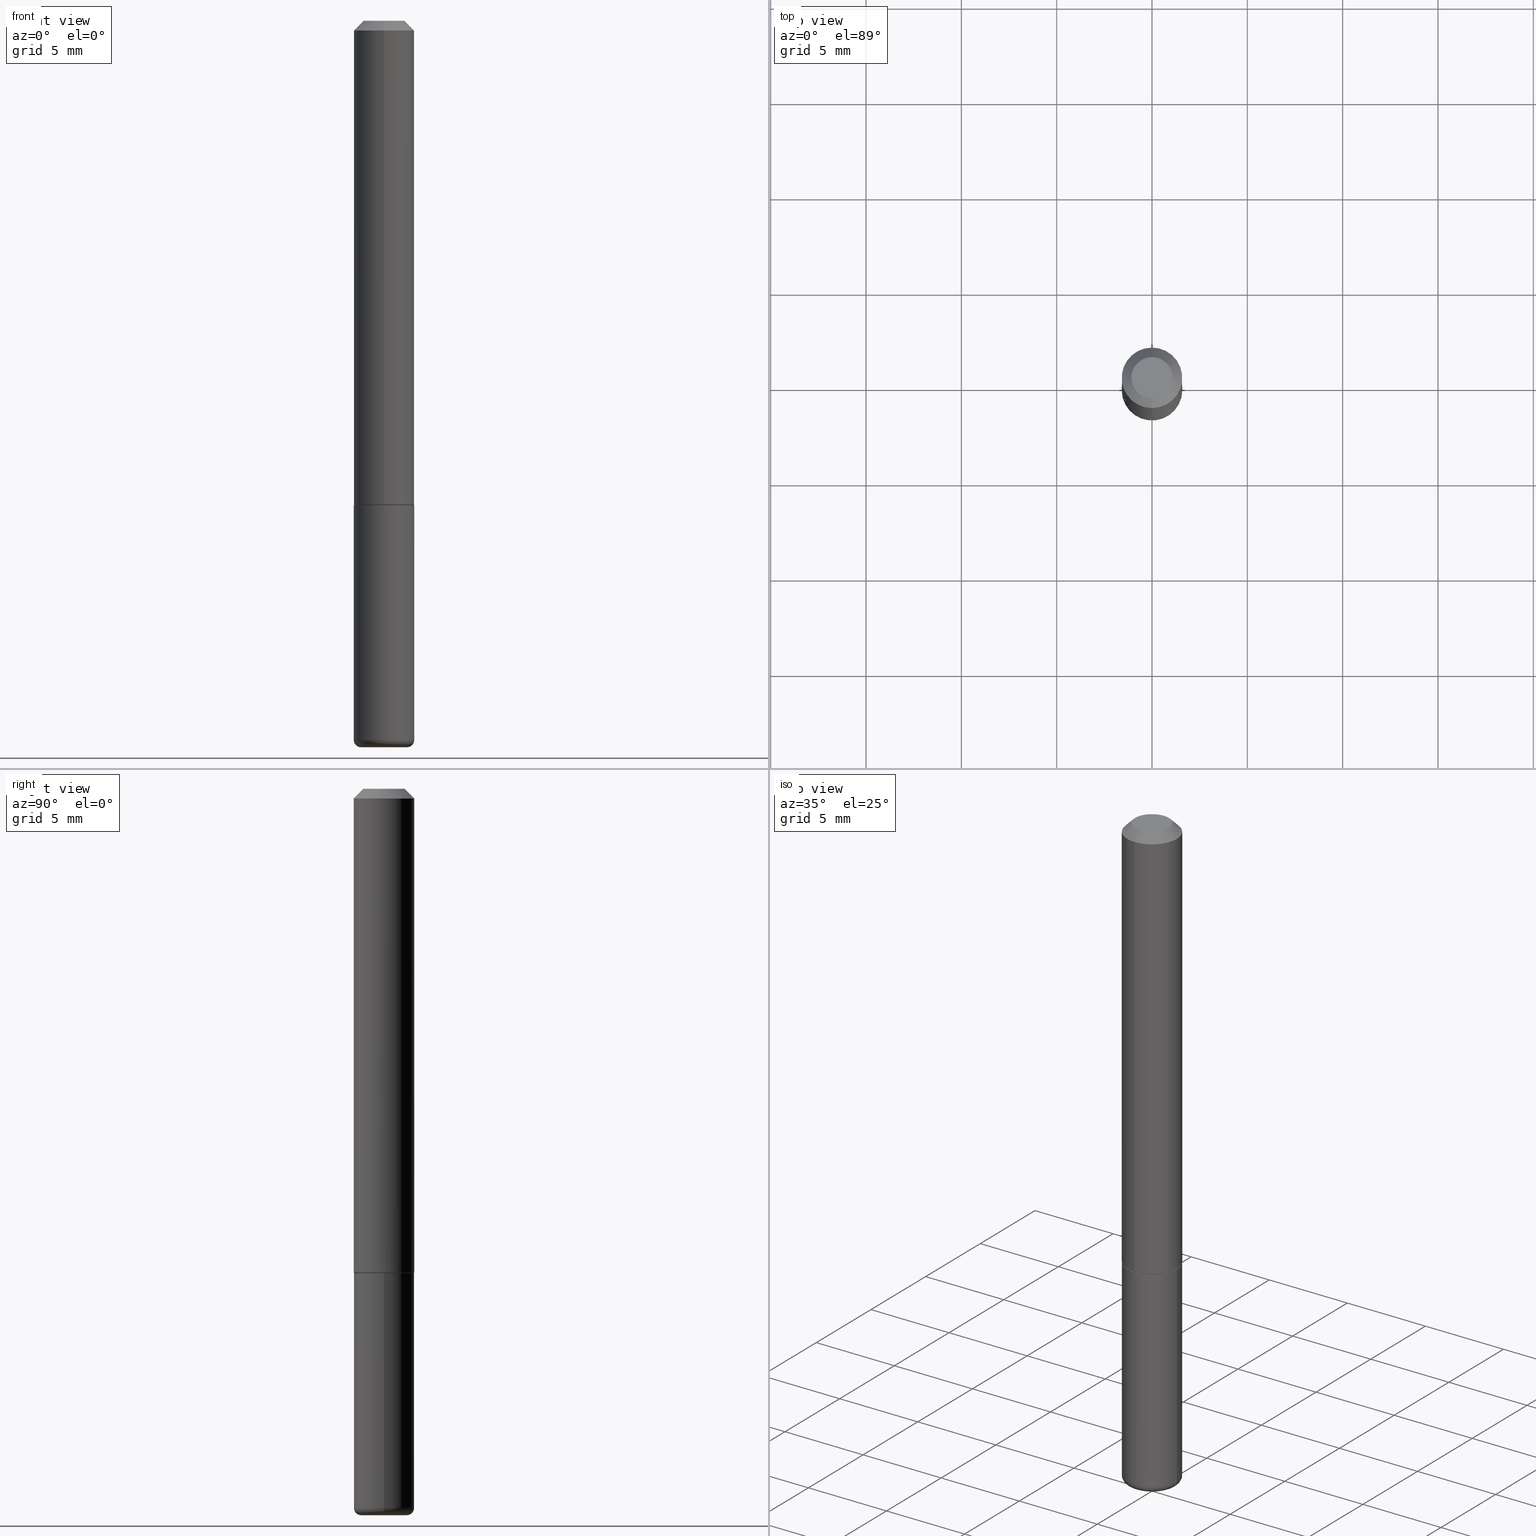
[diagram: canonical four-view strip — front | top / right | iso, engineering-drawing reading convention]
A machine part, canonical four-view strip (front | top / right | iso — engineering-drawing reading convention). The complete STEP part file that produces these views, byte-faithful:
ISO-10303-21;
HEADER;
FILE_DESCRIPTION (( 'STEP AP203' ),
    '1' );
FILE_NAME ('38315.STEP',
    '2024-03-02T22:21:19',
    ( '' ),
    ( '' ),
    'SwSTEP 2.0',
    'SolidWorks 2023',
    '' );
FILE_SCHEMA (( 'CONFIG_CONTROL_DESIGN' ));
ENDSEC;

DATA;
#1 = VERTEX_POINT ( 'NONE', #354 ) ;
#2 = ADVANCED_FACE ( 'NONE', ( #196 ), #301, .T. ) ;
#3 = VERTEX_POINT ( 'NONE', #279 ) ;
#4 = CARTESIAN_POINT ( 'NONE',  ( 2.463521279207835223E-29, -3.458635638134944801E-15, -0.9989999999999998881 ) ) ;
#5 = AXIS2_PLACEMENT_3D ( 'NONE', #219, #224, #346 ) ;
#6 = DIRECTION ( 'NONE',  ( 1.000000000000000000, -6.982962677686269077E-15, 0.000000000000000000 ) ) ;
#7 = CALENDAR_DATE ( 2024, 2, 3 ) ;
#8 = ORIENTED_EDGE ( 'NONE', *, *, #361, .T. ) ;
#9 = DIRECTION ( 'NONE',  ( -2.465987266474309438E-29, 3.462097735870816064E-15, 1.000000000000000000 ) ) ;
#10 = ORIENTED_EDGE ( 'NONE', *, *, #168, .T. ) ;
#11 = DIRECTION ( 'NONE',  ( -1.000000000000000000, 7.105427357601001859E-15, 0.000000000000000000 ) ) ;
#12 = FACE_OUTER_BOUND ( 'NONE', #329, .T. ) ;
#13 = PRODUCT_DEFINITION ( 'UNKNOWN', '', #220, #288 ) ;
#14 = LOCAL_TIME ( 17, 21, 19.00000000000000000, #123 ) ;
#15 =( CONVERSION_BASED_UNIT ( 'INCH', #130 ) LENGTH_UNIT ( ) NAMED_UNIT ( #93 ) );
#16 = CARTESIAN_POINT ( 'NONE',  ( 3.631521177184927577E-29, -5.184849788182070703E-15, -1.484999999999999876 ) ) ;
#17 = PERSON_AND_ORGANIZATION ( #131, #292 ) ;
#18 = DIRECTION ( 'NONE',  ( -2.465987266474309158E-29, 3.462097735870816064E-15, 1.000000000000000000 ) ) ;
#19 = AXIS2_PLACEMENT_3D ( 'NONE', #4, #394, #143 ) ;
#20 = AXIS2_PLACEMENT_3D ( 'NONE', #320, #258, #98 ) ;
#21 = CARTESIAN_POINT ( 'NONE',  ( -3.127033908133764755E-45, 4.390167443491932908E-31, 1.268065715766883385E-16 ) ) ;
#22 = DIRECTION ( 'NONE',  ( -2.445468806185136597E-29, 3.491481338843145583E-15, 1.000000000000000000 ) ) ;
#23 = DIRECTION ( 'NONE',  ( -2.445468806185136597E-29, 3.491481338843145583E-15, 1.000000000000000000 ) ) ;
#24 = ADVANCED_FACE ( 'NONE', ( #338 ), #117, .T. ) ;
#25 = CIRCLE ( 'NONE', #264, 0.04249999999999982264 ) ;
#26 = VERTEX_POINT ( 'NONE', #222 ) ;
#27 = AXIS2_PLACEMENT_3D ( 'NONE', #253, #23, #136 ) ;
#28 = DIRECTION ( 'NONE',  ( -1.000000000000000000, 6.982962677686265922E-15, -4.876176775795935793E-29 ) ) ;
#29 = ORIENTED_EDGE ( 'NONE', *, *, #81, .F. ) ;
#30 = DIRECTION ( 'NONE',  ( -2.465987266474309438E-29, 3.462097735870816064E-15, 1.000000000000000000 ) ) ;
#31 = ADVANCED_FACE ( 'NONE', ( #58 ), #140, .T. ) ;
#32 = AXIS2_PLACEMENT_3D ( 'NONE', #144, #330, #328 ) ;
#33 = APPROVAL_PERSON_ORGANIZATION ( #215, #411, #65 ) ;
#34 = UNCERTAINTY_MEASURE_WITH_UNIT (LENGTH_MEASURE( 1.000000000000000082E-05 ), #15, 'distance_accuracy_value', 'NONE');
#35 = EDGE_CURVE ( 'NONE', #271, #169, #171, .T. ) ;
#36 = COORDINATED_UNIVERSAL_TIME_OFFSET ( 5, 0, .BEHIND. ) ;
#37 = ORIENTED_EDGE ( 'NONE', *, *, #322, .F. ) ;
#38 = LINE ( 'NONE', #106, #127 ) ;
#39 = CIRCLE ( 'NONE', #83, 0.06249999999999995143 ) ;
#40 = EDGE_LOOP ( 'NONE', ( #387, #327 ) ) ;
#41 = DIRECTION ( 'NONE',  ( 7.105427357601001859E-15, 1.000000000000000000, -3.491481338843145583E-15 ) ) ;
#42 = CC_DESIGN_PERSON_AND_ORGANIZATION_ASSIGNMENT ( #332, #128, ( #220 ) ) ;
#43 = LINE ( 'NONE', #272, #269 ) ;
#44 = CIRCLE ( 'NONE', #311, 0.06250000000000001388 ) ;
#45 = VECTOR ( 'NONE', #30, 39.37007874015748143 ) ;
#46 = PERSON_AND_ORGANIZATION ( #131, #292 ) ;
#47 = DIRECTION ( 'NONE',  ( 2.465987266474309158E-29, -3.462097735870816064E-15, -1.000000000000000000 ) ) ;
#48 = DIRECTION ( 'NONE',  ( 2.465987266474309438E-29, -3.462097735870816064E-15, -1.000000000000000000 ) ) ;
#49 = APPROVAL_DATE_TIME ( #339, #379 ) ;
#50 = DIRECTION ( 'NONE',  ( 1.000000000000000000, -6.982962677686267499E-15, 4.876176775795935793E-29 ) ) ;
#51 = SHAPE_DEFINITION_REPRESENTATION ( #55, #176 ) ;
#52 = PLANE ( 'NONE',  #118 ) ;
#53 = AXIS2_PLACEMENT_3D ( 'NONE', #132, #225, #64 ) ;
#54 = LINE ( 'NONE', #380, #202 ) ;
#55 = PRODUCT_DEFINITION_SHAPE ( 'NONE', 'NONE',  #13 ) ;
#56 = CARTESIAN_POINT ( 'NONE',  ( 4.440892098500625669E-16, 0.06250000000000000000, -2.163811084919260040E-16 ) ) ;
#57 = COORDINATED_UNIVERSAL_TIME_OFFSET ( 5, 0, .BEHIND. ) ;
#58 = FACE_OUTER_BOUND ( 'NONE', #293, .T. ) ;
#59 = APPLICATION_PROTOCOL_DEFINITION ( 'international standard', 'config_control_design', 1994, #295 ) ;
#60 = DIRECTION ( 'NONE',  ( 1.000000000000000000, -6.982962677686276177E-15, 0.000000000000000000 ) ) ;
#61 = LINE ( 'NONE', #56, #247 ) ;
#62 = MANIFOLD_SOLID_BREP ( 'Body-Move/Copy2[2]', #260 ) ;
#63 = PERSON_AND_ORGANIZATION ( #131, #292 ) ;
#64 = DIRECTION ( 'NONE',  ( -6.982962677686265922E-15, -1.000000000000000000, 3.483106191921938315E-15 ) ) ;
#65 = APPROVAL_ROLE ( '' ) ;
#66 = ORIENTED_EDGE ( 'NONE', *, *, #134, .F. ) ;
#67 = CIRCLE ( 'NONE', #318, 0.01499999999999997689 ) ;
#68 = EDGE_CURVE ( 'NONE', #3, #395, #388, .T. ) ;
#69 = CARTESIAN_POINT ( 'NONE',  ( -4.364351673553916201E-16, -0.06250000000000000000, 2.163811084919260040E-16 ) ) ;
#70 = ORIENTED_EDGE ( 'NONE', *, *, #168, .F. ) ;
#71 = EDGE_CURVE ( 'NONE', #26, #395, #38, .T. ) ;
#72 = EDGE_LOOP ( 'NONE', ( #190, #10, #142, #240 ) ) ;
#73 = DIRECTION ( 'NONE',  ( 5.024295867788748699E-15, 0.7071067811866466046, 0.7071067811864484298 ) ) ;
#74 = VERTEX_POINT ( 'NONE', #236 ) ;
#75 = AXIS2_PLACEMENT_3D ( 'NONE', #256, #360, #174 ) ;
#76 = DIRECTION ( 'NONE',  ( -2.465987266474309438E-29, 3.462097735870816064E-15, 1.000000000000000000 ) ) ;
#77 = CARTESIAN_POINT ( 'NONE',  ( -3.601761448830043066E-16, -0.04249999999999982264, 2.739457253511973497E-16 ) ) ;
#78 = EDGE_CURVE ( 'NONE', #290, #169, #199, .T. ) ;
#79 = ORIENTED_EDGE ( 'NONE', *, *, #361, .F. ) ;
#80 = VERTEX_POINT ( 'NONE', #348 ) ;
#81 = EDGE_CURVE ( 'NONE', #169, #290, #44, .T. ) ;
#82 = AXIS2_PLACEMENT_3D ( 'NONE', #369, #48, #362 ) ;
#83 = AXIS2_PLACEMENT_3D ( 'NONE', #186, #385, #160 ) ;
#84 = DIRECTION ( 'NONE',  ( -2.465987266474309438E-29, 3.462097735870816064E-15, 1.000000000000000000 ) ) ;
#85 = DIRECTION ( 'NONE',  ( -2.445468806185136877E-29, 3.491481338843145188E-15, 1.000000000000000000 ) ) ;
#86 = DATE_TIME_ROLE ( 'creation_date' ) ;
#87 = DIRECTION ( 'NONE',  ( -6.982962677686265133E-15, -1.000000000000000000, 3.462097735870815275E-15 ) ) ;
#88 = DIRECTION ( 'NONE',  ( 1.000000000000000000, -6.982962677686279332E-15, 0.000000000000000000 ) ) ;
#89 = VECTOR ( 'NONE', #244, 39.37007874015748854 ) ;
#90 = CC_DESIGN_APPROVAL ( #379, ( #13 ) ) ;
#91 = EDGE_CURVE ( 'NONE', #1, #208, #147, .T. ) ;
#92 = DIRECTION ( 'NONE',  ( -6.982962677686265922E-15, -1.000000000000000000, 3.462097735870816064E-15 ) ) ;
#93 = DIMENSIONAL_EXPONENTS ( 1.000000000000000000, 0.000000000000000000, 0.000000000000000000, 0.000000000000000000, 0.000000000000000000, 0.000000000000000000, 0.000000000000000000 ) ;
#94 = MECHANICAL_CONTEXT ( 'NONE', #295, 'mechanical' ) ;
#95 = ORIENTED_EDGE ( 'NONE', *, *, #261, .F. ) ;
#96 = FACE_OUTER_BOUND ( 'NONE', #99, .T. ) ;
#97 = AXIS2_PLACEMENT_3D ( 'NONE', #21, #378, #87 ) ;
#98 = DIRECTION ( 'NONE',  ( -6.982962677686265922E-15, -1.000000000000000000, 4.442029257990672920E-15 ) ) ;
#99 = EDGE_LOOP ( 'NONE', ( #257, #197, #364, #304 ) ) ;
#100 = ORIENTED_EDGE ( 'NONE', *, *, #342, .F. ) ;
#101 = CONICAL_SURFACE ( 'NONE', #82, 0.06249999999999995143, 0.7853981633974466137 ) ;
#102 = LOCAL_TIME ( 17, 21, 19.00000000000000000, #57 ) ;
#103 = ORIENTED_EDGE ( 'NONE', *, *, #284, .F. ) ;
#104 = CARTESIAN_POINT ( 'NONE',  ( 3.668203209277704335E-29, -5.237222008264717388E-15, -1.499999999999999778 ) ) ;
#105 = ORIENTED_EDGE ( 'NONE', *, *, #399, .F. ) ;
#106 = CARTESIAN_POINT ( 'NONE',  ( 4.369837824924861613E-16, 0.06149999999999652273, -1.000000000000000000 ) ) ;
#107 = DIRECTION ( 'NONE',  ( -2.445468806185136597E-29, 3.491481338843145583E-15, 1.000000000000000000 ) ) ;
#108 = ORIENTED_EDGE ( 'NONE', *, *, #284, .T. ) ;
#109 = AXIS2_PLACEMENT_3D ( 'NONE', #223, #287, #28 ) ;
#110 = DIRECTION ( 'NONE',  ( -6.982962677686265133E-15, -1.000000000000000000, 3.462097735870815275E-15 ) ) ;
#111 = EDGE_LOOP ( 'NONE', ( #95, #165, #359, #79 ) ) ;
#112 = APPROVAL_DATE_TIME ( #205, #411 ) ;
#113 = CC_DESIGN_PERSON_AND_ORGANIZATION_ASSIGNMENT ( #409, #376, ( #220 ) ) ;
#114 = CARTESIAN_POINT ( 'NONE',  ( -4.287811248607198352E-16, -0.06250000000000001388, -0.01999999999999985123 ) ) ;
#115 = COORDINATED_UNIVERSAL_TIME_OFFSET ( 5, 0, .BEHIND. ) ;
#116 = CARTESIAN_POINT ( 'NONE',  ( 4.931974532948636112E-31, -6.924195471741654906E-17, -0.02000000000000006981 ) ) ;
#117 = CONICAL_SURFACE ( 'NONE', #194, 0.06149999999999998523, 0.7853981633975849475 ) ;
#118 = AXIS2_PLACEMENT_3D ( 'NONE', #308, #18, #92 ) ;
#119 = DIRECTION ( 'NONE',  ( -2.465987266474309438E-29, 3.462097735870816064E-15, 1.000000000000000000 ) ) ;
#120 = APPLICATION_PROTOCOL_DEFINITION ( 'international standard', 'config_control_design', 1994, #358 ) ;
#121 = DIRECTION ( 'NONE',  ( -6.982962677686266711E-15, -1.000000000000000000, 3.491481338843145583E-15 ) ) ;
#122 = CARTESIAN_POINT ( 'NONE',  ( 0.000000000000000000, 0.000000000000000000, 0.000000000000000000 ) ) ;
#123 = COORDINATED_UNIVERSAL_TIME_OFFSET ( 5, 0, .BEHIND. ) ;
#124 = CC_DESIGN_DATE_AND_TIME_ASSIGNMENT ( #377, #86, ( #13 ) ) ;
#125 = DIRECTION ( 'NONE',  ( 0.000000000000000000, 0.000000000000000000, 1.000000000000000000 ) ) ;
#126 = CARTESIAN_POINT ( 'NONE',  ( -0.06250000000000001388, -4.740760578332009665E-15, -1.485000000000000098 ) ) ;
#127 = VECTOR ( 'NONE', #73, 39.37007874015748143 ) ;
#128 = PERSON_AND_ORGANIZATION_ROLE ( 'creator' ) ;
#129 = AXIS2_PLACEMENT_3D ( 'NONE', #16, #150, #276 ) ;
#130 = LENGTH_MEASURE_WITH_UNIT ( LENGTH_MEASURE( 0.02539999999999999897 ), #200 );
#131 = PERSON ( 'UNSPECIFIED', 'UNSPECIFIED', 'UNSPECIFIED', ('UNSPECIFIED'), ('UNSPECIFIED'), ('UNSPECIFIED') ) ;
#132 = CARTESIAN_POINT ( 'NONE',  ( 4.931974532948636112E-31, -6.924195471741654906E-17, -0.02000000000000006981 ) ) ;
#133 = DIRECTION ( 'NONE',  ( -2.445468806185136877E-29, 3.491481338843145188E-15, 1.000000000000000000 ) ) ;
#134 = EDGE_CURVE ( 'NONE', #80, #3, #43, .T. ) ;
#135 = ORIENTED_EDGE ( 'NONE', *, *, #35, .T. ) ;
#136 = DIRECTION ( 'NONE',  ( 1.000000000000000000, -6.982962677686267499E-15, 4.876176775795935793E-29 ) ) ;
#137 = AXIS2_PLACEMENT_3D ( 'NONE', #313, #152, #60 ) ;
#138 = ORIENTED_EDGE ( 'NONE', *, *, #193, .T. ) ;
#139 = EDGE_LOOP ( 'NONE', ( #371, #382, #242, #100 ) ) ;
#140 = PLANE ( 'NONE',  #218 ) ;
#141 = AXIS2_PLACEMENT_3D ( 'NONE', #316, #410, #285 ) ;
#142 = ORIENTED_EDGE ( 'NONE', *, *, #326, .T. ) ;
#143 = DIRECTION ( 'NONE',  ( -6.982962677686266711E-15, -1.000000000000000000, 4.370956789862817205E-15 ) ) ;
#144 = CARTESIAN_POINT ( 'NONE',  ( 3.668203209277704335E-29, -5.237222008264717388E-15, -1.499999999999999778 ) ) ;
#145 = DIRECTION ( 'NONE',  ( -2.465987266474309438E-29, 3.462097735870816064E-15, 1.000000000000000000 ) ) ;
#146 = ORIENTED_EDGE ( 'NONE', *, *, #81, .T. ) ;
#147 = CIRCLE ( 'NONE', #32, 0.04750000000000004219 ) ;
#148 = PLANE ( 'NONE',  #270 ) ;
#149 = ORIENTED_EDGE ( 'NONE', *, *, #71, .T. ) ;
#150 = DIRECTION ( 'NONE',  ( -2.445468806185136597E-29, 3.491481338843145583E-15, 1.000000000000000000 ) ) ;
#151 = PERSON_AND_ORGANIZATION_ROLE ( 'creator' ) ;
#152 = DIRECTION ( 'NONE',  ( -2.445468806185136597E-29, 3.491481338843145583E-15, 1.000000000000000000 ) ) ;
#153 = VECTOR ( 'NONE', #133, 39.37007874015748143 ) ;
#154 = TOROIDAL_SURFACE ( 'NONE', #373, 0.04750000000000004219, 0.01499999999999997689 ) ;
#155 = PRODUCT ( '38315', '38315', '', ( #94 ) ) ;
#156 = EDGE_CURVE ( 'NONE', #74, #192, #25, .T. ) ;
#157 = DIRECTION ( 'NONE',  ( 1.000000000000000000, 0.000000000000000000, 0.000000000000000000 ) ) ;
#158 = CYLINDRICAL_SURFACE ( 'NONE', #363, 0.06250000000000000000 ) ;
#159 = PERSON_AND_ORGANIZATION_ROLE ( 'classification_officer' ) ;
#160 = DIRECTION ( 'NONE',  ( -6.982962677686265922E-15, -1.000000000000000000, 3.483106191921938315E-15 ) ) ;
#161 = TOROIDAL_SURFACE ( 'NONE', #129, 0.04750000000000004219, 0.01499999999999997689 ) ;
#162 = VECTOR ( 'NONE', #85, 39.37007874015748143 ) ;
#163 = DIRECTION ( 'NONE',  ( -1.000000000000000000, 6.982962677686265922E-15, -4.876176775795935793E-29 ) ) ;
#164 = CARTESIAN_POINT ( 'NONE',  ( 0.000000000000000000, 0.000000000000000000, 0.000000000000000000 ) ) ;
#165 = ORIENTED_EDGE ( 'NONE', *, *, #322, .T. ) ;
#166 = AXIS2_PLACEMENT_3D ( 'NONE', #341, #125, #157 ) ;
#167 = EDGE_LOOP ( 'NONE', ( #390, #105 ) ) ;
#168 = EDGE_CURVE ( 'NONE', #192, #349, #241, .T. ) ;
#169 = VERTEX_POINT ( 'NONE', #396 ) ;
#170 = ORIENTED_EDGE ( 'NONE', *, *, #399, .T. ) ;
#171 = LINE ( 'NONE', #298, #153 ) ;
#172 = CC_DESIGN_SECURITY_CLASSIFICATION ( #189, ( #220 ) ) ;
#173 = ORIENTED_EDGE ( 'NONE', *, *, #254, .F. ) ;
#174 = DIRECTION ( 'NONE',  ( 1.000000000000000000, -6.982962677686269077E-15, 0.000000000000000000 ) ) ;
#175 = ORIENTED_EDGE ( 'NONE', *, *, #68, .F. ) ;
#176 = ADVANCED_BREP_SHAPE_REPRESENTATION ( '38315', ( #191, #62, #166 ), #300 ) ;
#177 = DIRECTION ( 'NONE',  ( 1.000000000000000000, -6.982962677686261189E-15, 4.883557194083111219E-29 ) ) ;
#178 = ORIENTED_EDGE ( 'NONE', *, *, #71, .F. ) ;
#179 = CIRCLE ( 'NONE', #412, 0.01499999999999997689 ) ;
#180 = CARTESIAN_POINT ( 'NONE',  ( 3.631521177184928138E-29, -5.184849788182071492E-15, -1.485000000000000098 ) ) ;
#181 = CARTESIAN_POINT ( 'NONE',  ( -0.06250000000000001388, -3.894076353662544935E-15, -0.9999999999999996669 ) ) ;
#182 = PERSON_AND_ORGANIZATION ( #131, #292 ) ;
#183 = ADVANCED_FACE ( 'NONE', ( #372 ), #101, .T. ) ;
#184 = FACE_OUTER_BOUND ( 'NONE', #167, .T. ) ;
#185 = LOCAL_TIME ( 17, 21, 19.00000000000000000, #277 ) ;
#186 = CARTESIAN_POINT ( 'NONE',  ( 4.931974532948636112E-31, -6.924195471741654906E-17, -0.02000000000000006981 ) ) ;
#187 = FACE_OUTER_BOUND ( 'NONE', #209, .T. ) ;
#188 = CARTESIAN_POINT ( 'NONE',  ( 4.440892098500753366E-16, 0.06249999999999659300, -0.9990000000000002212 ) ) ;
#189 = SECURITY_CLASSIFICATION ( '', '', #370 ) ;
#190 = ORIENTED_EDGE ( 'NONE', *, *, #347, .F. ) ;
#191 = MANIFOLD_SOLID_BREP ( 'Body-Move/Copy2[1]', #299 ) ;
#192 = VERTEX_POINT ( 'NONE', #77 ) ;
#193 = EDGE_CURVE ( 'NONE', #271, #321, #231, .T. ) ;
#194 = AXIS2_PLACEMENT_3D ( 'NONE', #210, #119, #309 ) ;
#195 = APPROVAL_PERSON_ORGANIZATION ( #182, #306, #305 ) ;
#196 = FACE_OUTER_BOUND ( 'NONE', #352, .T. ) ;
#197 = ORIENTED_EDGE ( 'NONE', *, *, #254, .T. ) ;
#198 = ADVANCED_FACE ( 'NONE', ( #267 ), #161, .T. ) ;
#199 = CIRCLE ( 'NONE', #75, 0.06250000000000001388 ) ;
#200 =( LENGTH_UNIT ( ) NAMED_UNIT ( * ) SI_UNIT ( $, .METRE. ) );
#201 = CIRCLE ( 'NONE', #5, 0.06149999999999998523 ) ;
#202 = VECTOR ( 'NONE', #250, 39.37007874015748854 ) ;
#203 = ORIENTED_EDGE ( 'NONE', *, *, #393, .F. ) ;
#204 = DIRECTION ( 'NONE',  ( -2.445468806185136597E-29, 3.491481338843145583E-15, 1.000000000000000000 ) ) ;
#205 = DATE_AND_TIME ( #7, #407 ) ;
#206 = CARTESIAN_POINT ( 'NONE',  ( -0.04750000000000004219, -4.847341988696023209E-15, -1.484999999999999876 ) ) ;
#207 = CARTESIAN_POINT ( 'NONE',  ( 4.364351673553917187E-16, 0.06249999999999988204, -0.02000000000000028491 ) ) ;
#208 = VERTEX_POINT ( 'NONE', #397 ) ;
#209 = EDGE_LOOP ( 'NONE', ( #138, #108, #29, #259 ) ) ;
#210 = CARTESIAN_POINT ( 'NONE',  ( 2.465987266474308877E-29, -3.462097735870814881E-15, -0.9999999999999996669 ) ) ;
#211 =( NAMED_UNIT ( * ) SI_UNIT ( $, .STERADIAN. ) SOLID_ANGLE_UNIT ( ) );
#212 = CARTESIAN_POINT ( 'NONE',  ( 2.465987266474308877E-29, -3.462097735870814881E-15, -0.9999999999999996669 ) ) ;
#213 = FACE_OUTER_BOUND ( 'NONE', #401, .T. ) ;
#214 = EDGE_CURVE ( 'NONE', #395, #3, #237, .T. ) ;
#215 = PERSON_AND_ORGANIZATION ( #131, #292 ) ;
#216 = CYLINDRICAL_SURFACE ( 'NONE', #27, 0.06250000000000001388 ) ;
#217 = DIRECTION ( 'NONE',  ( -2.465987266474309438E-29, 3.462097735870816064E-15, 1.000000000000000000 ) ) ;
#218 = AXIS2_PLACEMENT_3D ( 'NONE', #104, #235, #163 ) ;
#219 = CARTESIAN_POINT ( 'NONE',  ( 2.465987266474308877E-29, -3.462097735870814881E-15, -0.9999999999999996669 ) ) ;
#220 = PRODUCT_DEFINITION_FORMATION_WITH_SPECIFIED_SOURCE ( 'ANY', '', #155, .NOT_KNOWN. ) ;
#221 = DATE_AND_TIME ( #251, #102 ) ;
#222 = CARTESIAN_POINT ( 'NONE',  ( 4.405364961712868626E-16, 0.06149999999999652273, -1.000000000000000000 ) ) ;
#223 = CARTESIAN_POINT ( 'NONE',  ( 2.445468806185136036E-29, -3.491481338843144399E-15, -0.9999999999999996669 ) ) ;
#224 = DIRECTION ( 'NONE',  ( -2.465987266474309438E-29, 3.462097735870816064E-15, 1.000000000000000000 ) ) ;
#225 = DIRECTION ( 'NONE',  ( -2.465987266474309438E-29, 3.462097735870816064E-15, 1.000000000000000000 ) ) ;
#226 = CIRCLE ( 'NONE', #141, 0.06250000000000001388 ) ;
#227 = LINE ( 'NONE', #69, #45 ) ;
#228 = CC_DESIGN_PERSON_AND_ORGANIZATION_ASSIGNMENT ( #17, #151, ( #13 ) ) ;
#229 = CARTESIAN_POINT ( 'NONE',  ( 3.631521177184927577E-29, -5.184849788182070703E-15, -1.484999999999999876 ) ) ;
#230 = EDGE_LOOP ( 'NONE', ( #266, #149, #175, #66 ) ) ;
#231 = CIRCLE ( 'NONE', #333, 0.06250000000000001388 ) ;
#232 = CONICAL_SURFACE ( 'NONE', #389, 0.06149999999999998523, 0.7853981633975849475 ) ;
#233 = VERTEX_POINT ( 'NONE', #207 ) ;
#234 = ADVANCED_FACE ( 'NONE', ( #12 ), #334, .T. ) ;
#235 = DIRECTION ( 'NONE',  ( 2.438088387897960049E-29, -3.491481338843145188E-15, -1.000000000000000000 ) ) ;
#236 = CARTESIAN_POINT ( 'NONE',  ( 3.666055405785283712E-16, 0.04249999999999982264, -2.033258219782074665E-17 ) ) ;
#237 = CIRCLE ( 'NONE', #392, 0.06250000000000005551 ) ;
#238 = DIRECTION ( 'NONE',  ( 1.000000000000000000, -6.982962677686261189E-15, 0.000000000000000000 ) ) ;
#239 = ADVANCED_FACE ( 'NONE', ( #213 ), #216, .T. ) ;
#240 = ORIENTED_EDGE ( 'NONE', *, *, #289, .F. ) ;
#241 = LINE ( 'NONE', #114, #89 ) ;
#242 = ORIENTED_EDGE ( 'NONE', *, *, #193, .F. ) ;
#243 = FACE_OUTER_BOUND ( 'NONE', #40, .T. ) ;
#244 = DIRECTION ( 'NONE',  ( -4.851104656540954809E-15, -0.7071067811865486830, -0.7071067811865462405 ) ) ;
#245 = CALENDAR_DATE ( 2024, 2, 3 ) ;
#246 = CARTESIAN_POINT ( 'NONE',  ( -0.06250000000000001388, 4.440892098500627148E-16, -3.074334431409317165E-30 ) ) ;
#247 = VECTOR ( 'NONE', #76, 39.37007874015748143 ) ;
#248 = DIRECTION ( 'NONE',  ( 2.465987266474309438E-29, -3.462097735870816064E-15, -1.000000000000000000 ) ) ;
#249 = EDGE_CURVE ( 'NONE', #80, #26, #201, .T. ) ;
#250 = DIRECTION ( 'NONE',  ( 4.937700262164538576E-15, 0.7071067811865437980, -0.7071067811865511255 ) ) ;
#251 = CALENDAR_DATE ( 2024, 2, 3 ) ;
#252 = CYLINDRICAL_SURFACE ( 'NONE', #286, 0.06250000000000001388 ) ;
#253 = CARTESIAN_POINT ( 'NONE',  ( 0.000000000000000000, 0.000000000000000000, 0.000000000000000000 ) ) ;
#254 = EDGE_CURVE ( 'NONE', #395, #233, #61, .T. ) ;
#255 = CARTESIAN_POINT ( 'NONE',  ( 0.06250000000000001388, -5.621284955537463950E-15, -1.485000000000000098 ) ) ;
#256 = CARTESIAN_POINT ( 'NONE',  ( 2.445468806185136036E-29, -3.491481338843144399E-15, -0.9999999999999996669 ) ) ;
#257 = ORIENTED_EDGE ( 'NONE', *, *, #68, .T. ) ;
#258 = DIRECTION ( 'NONE',  ( -2.465987266474309438E-29, 3.462097735870816064E-15, 1.000000000000000000 ) ) ;
#259 = ORIENTED_EDGE ( 'NONE', *, *, #35, .F. ) ;
#260 = CLOSED_SHELL ( 'NONE', ( #294, #355, #183, #234, #2, #24, #319, #268 ) ) ;
#261 = EDGE_CURVE ( 'NONE', #208, #321, #179, .T. ) ;
#262 = CIRCLE ( 'NONE', #97, 0.04249999999999982264 ) ;
#263 = CC_DESIGN_DATE_AND_TIME_ASSIGNMENT ( #221, #314, ( #189 ) ) ;
#264 = AXIS2_PLACEMENT_3D ( 'NONE', #337, #145, #110 ) ;
#265 = LOCAL_TIME ( 17, 21, 19.00000000000000000, #115 ) ;
#266 = ORIENTED_EDGE ( 'NONE', *, *, #249, .T. ) ;
#267 = FACE_OUTER_BOUND ( 'NONE', #111, .T. ) ;
#268 = ADVANCED_FACE ( 'NONE', ( #243 ), #148, .F. ) ;
#269 = VECTOR ( 'NONE', #402, 39.37007874015748143 ) ;
#270 = AXIS2_PLACEMENT_3D ( 'NONE', #336, #47, #384 ) ;
#271 = VERTEX_POINT ( 'NONE', #255 ) ;
#272 = CARTESIAN_POINT ( 'NONE',  ( -4.294522046776806088E-16, -0.06150000000000345468, -0.9999999999999994449 ) ) ;
#273 = CALENDAR_DATE ( 2024, 2, 3 ) ;
#274 = APPROVAL_STATUS ( 'not_yet_approved' ) ;
#275 = ADVANCED_FACE ( 'NONE', ( #374 ), #340, .F. ) ;
#276 = DIRECTION ( 'NONE',  ( 1.000000000000000000, -6.982962677686261189E-15, 4.883557194083111219E-29 ) ) ;
#277 = COORDINATED_UNIVERSAL_TIME_OFFSET ( 5, 0, .BEHIND. ) ;
#278 = CARTESIAN_POINT ( 'NONE',  ( 0.04750000000000004219, -5.516540515372169003E-15, -1.484999999999999876 ) ) ;
#279 = CARTESIAN_POINT ( 'NONE',  ( -4.364351673553674119E-16, -0.06250000000000351108, -0.9989999999999996660 ) ) ;
#280 = CARTESIAN_POINT ( 'NONE',  ( -4.287811248607198352E-16, -0.06250000000000001388, -0.01999999999999985123 ) ) ;
#281 = APPROVAL_STATUS ( 'not_yet_approved' ) ;
#282 = DIRECTION ( 'NONE',  ( -6.982962677686265922E-15, -1.000000000000000000, 3.462097735870816064E-15 ) ) ;
#283 = DATE_AND_TIME ( #273, #14 ) ;
#284 = EDGE_CURVE ( 'NONE', #321, #290, #345, .T. ) ;
#285 = DIRECTION ( 'NONE',  ( 1.000000000000000000, -6.982962677686261189E-15, 0.000000000000000000 ) ) ;
#286 = AXIS2_PLACEMENT_3D ( 'NONE', #164, #22, #50 ) ;
#287 = DIRECTION ( 'NONE',  ( 2.438088387897960049E-29, -3.491481338843145188E-15, -1.000000000000000000 ) ) ;
#288 = DESIGN_CONTEXT ( 'detailed design', #358, 'design' ) ;
#289 = EDGE_CURVE ( 'NONE', #74, #233, #54, .T. ) ;
#290 = VERTEX_POINT ( 'NONE', #181 ) ;
#291 = FACE_OUTER_BOUND ( 'NONE', #139, .T. ) ;
#292 = ORGANIZATION ( 'UNSPECIFIED', 'UNSPECIFIED', '' ) ;
#293 = EDGE_LOOP ( 'NONE', ( #391, #37 ) ) ;
#294 = ADVANCED_FACE ( 'NONE', ( #414 ), #232, .T. ) ;
#295 = APPLICATION_CONTEXT ( 'configuration controlled 3d designs of mechanical parts and assemblies' ) ;
#296 = ORIENTED_EDGE ( 'NONE', *, *, #134, .T. ) ;
#297 = ORIENTED_EDGE ( 'NONE', *, *, #156, .F. ) ;
#298 = CARTESIAN_POINT ( 'NONE',  ( 0.06250000000000001388, -4.364351673553918173E-16, 3.047610484872460571E-30 ) ) ;
#299 = CLOSED_SHELL ( 'NONE', ( #302, #417, #275, #239, #198, #31 ) ) ;
#300 =( GEOMETRIC_REPRESENTATION_CONTEXT ( 3 ) GLOBAL_UNCERTAINTY_ASSIGNED_CONTEXT ( ( #34 ) ) GLOBAL_UNIT_ASSIGNED_CONTEXT ( ( #15, #343, #211 ) ) REPRESENTATION_CONTEXT ( 'NONE', 'WORKASPACE' ) );
#301 = CYLINDRICAL_SURFACE ( 'NONE', #357, 0.06250000000000000000 ) ;
#302 = ADVANCED_FACE ( 'NONE', ( #187 ), #252, .T. ) ;
#303 = EDGE_LOOP ( 'NONE', ( #178, #170, #296, #415 ) ) ;
#304 = ORIENTED_EDGE ( 'NONE', *, *, #408, .F. ) ;
#305 = APPROVAL_ROLE ( '' ) ;
#306 = APPROVAL ( #281, 'UNSPECIFIED' ) ;
#307 = CARTESIAN_POINT ( 'NONE',  ( 2.463521279207835223E-29, -3.458635638134944801E-15, -0.9989999999999998881 ) ) ;
#308 = CARTESIAN_POINT ( 'NONE',  ( 2.465987266474308877E-29, -3.462097735870814881E-15, -0.9999999999999996669 ) ) ;
#309 = DIRECTION ( 'NONE',  ( -6.982962677686265922E-15, -1.000000000000000000, 4.442029257990672920E-15 ) ) ;
#310 = APPROVAL_STATUS ( 'not_yet_approved' ) ;
#311 = AXIS2_PLACEMENT_3D ( 'NONE', #365, #107, #6 ) ;
#312 = CIRCLE ( 'NONE', #20, 0.06149999999999998523 ) ;
#313 = CARTESIAN_POINT ( 'NONE',  ( 3.668203209277704335E-29, -5.237222008264717388E-15, -1.499999999999999778 ) ) ;
#314 = DATE_TIME_ROLE ( 'classification_date' ) ;
#315 = PERSON_AND_ORGANIZATION_ROLE ( 'design_owner' ) ;
#316 = CARTESIAN_POINT ( 'NONE',  ( 3.631521177184928138E-29, -5.184849788182071492E-15, -1.485000000000000098 ) ) ;
#317 = DIRECTION ( 'NONE',  ( -6.982962677686265922E-15, -1.000000000000000000, 4.442029257990672920E-15 ) ) ;
#318 = AXIS2_PLACEMENT_3D ( 'NONE', #278, #121, #88 ) ;
#319 = ADVANCED_FACE ( 'NONE', ( #184 ), #52, .F. ) ;
#320 = CARTESIAN_POINT ( 'NONE',  ( 2.465987266474308877E-29, -3.462097735870814881E-15, -0.9999999999999996669 ) ) ;
#321 = VERTEX_POINT ( 'NONE', #126 ) ;
#322 = EDGE_CURVE ( 'NONE', #208, #1, #383, .T. ) ;
#323 = CC_DESIGN_APPROVAL ( #411, ( #220 ) ) ;
#324 = PRODUCT_RELATED_PRODUCT_CATEGORY ( 'detail', '', ( #155 ) ) ;
#325 = CIRCLE ( 'NONE', #53, 0.06249999999999995143 ) ;
#326 = EDGE_CURVE ( 'NONE', #349, #233, #39, .T. ) ;
#327 = ORIENTED_EDGE ( 'NONE', *, *, #347, .T. ) ;
#328 = DIRECTION ( 'NONE',  ( 1.000000000000000000, -6.982962677686276177E-15, 0.000000000000000000 ) ) ;
#329 = EDGE_LOOP ( 'NONE', ( #70, #297, #335, #351 ) ) ;
#330 = DIRECTION ( 'NONE',  ( -2.445468806185136597E-29, 3.491481338843145583E-15, 1.000000000000000000 ) ) ;
#331 = CC_DESIGN_PERSON_AND_ORGANIZATION_ASSIGNMENT ( #46, #159, ( #189 ) ) ;
#332 = PERSON_AND_ORGANIZATION ( #131, #292 ) ;
#333 = AXIS2_PLACEMENT_3D ( 'NONE', #180, #204, #238 ) ;
#334 = CONICAL_SURFACE ( 'NONE', #416, 0.06249999999999995143, 0.7853981633974466137 ) ;
#335 = ORIENTED_EDGE ( 'NONE', *, *, #289, .T. ) ;
#336 = CARTESIAN_POINT ( 'NONE',  ( 2.967759138016650237E-16, 0.04249999999999982264, -8.373586798616487892E-17 ) ) ;
#337 = CARTESIAN_POINT ( 'NONE',  ( -3.127033908133764755E-45, 4.390167443491932908E-31, 1.268065715766883385E-16 ) ) ;
#338 = FACE_OUTER_BOUND ( 'NONE', #303, .T. ) ;
#339 = DATE_AND_TIME ( #245, #265 ) ;
#340 = PLANE ( 'NONE',  #109 ) ;
#341 = CARTESIAN_POINT ( 'NONE',  ( 0.000000000000000000, 0.000000000000000000, 0.000000000000000000 ) ) ;
#342 = EDGE_CURVE ( 'NONE', #1, #271, #67, .T. ) ;
#343 =( NAMED_UNIT ( * ) PLANE_ANGLE_UNIT ( ) SI_UNIT ( $, .RADIAN. ) );
#344 = PERSON_AND_ORGANIZATION ( #131, #292 ) ;
#345 = LINE ( 'NONE', #246, #162 ) ;
#346 = DIRECTION ( 'NONE',  ( -6.982962677686265922E-15, -1.000000000000000000, 4.442029257990672920E-15 ) ) ;
#347 = EDGE_CURVE ( 'NONE', #192, #74, #262, .T. ) ;
#348 = CARTESIAN_POINT ( 'NONE',  ( -4.294522046776806088E-16, -0.06150000000000345468, -0.9999999999999994449 ) ) ;
#349 = VERTEX_POINT ( 'NONE', #280 ) ;
#350 = CC_DESIGN_APPROVAL ( #306, ( #189 ) ) ;
#351 = ORIENTED_EDGE ( 'NONE', *, *, #393, .T. ) ;
#352 = EDGE_LOOP ( 'NONE', ( #173, #418, #386, #203 ) ) ;
#353 = DIRECTION ( 'NONE',  ( -2.445468806185136597E-29, 3.491481338843145583E-15, 1.000000000000000000 ) ) ;
#354 = CARTESIAN_POINT ( 'NONE',  ( 0.04750000000000004219, -5.568912735454815688E-15, -1.499999999999999778 ) ) ;
#355 = ADVANCED_FACE ( 'NONE', ( #96 ), #158, .T. ) ;
#356 = ORIENTED_EDGE ( 'NONE', *, *, #78, .F. ) ;
#357 = AXIS2_PLACEMENT_3D ( 'NONE', #366, #84, #381 ) ;
#358 = APPLICATION_CONTEXT ( 'configuration controlled 3d designs of mechanical parts and assemblies' ) ;
#359 = ORIENTED_EDGE ( 'NONE', *, *, #342, .T. ) ;
#360 = DIRECTION ( 'NONE',  ( -2.445468806185136597E-29, 3.491481338843145583E-15, 1.000000000000000000 ) ) ;
#361 = EDGE_CURVE ( 'NONE', #321, #271, #226, .T. ) ;
#362 = DIRECTION ( 'NONE',  ( 6.982962677686265922E-15, 1.000000000000000000, -3.483106191921938315E-15 ) ) ;
#363 = AXIS2_PLACEMENT_3D ( 'NONE', #122, #217, #282 ) ;
#364 = ORIENTED_EDGE ( 'NONE', *, *, #326, .F. ) ;
#365 = CARTESIAN_POINT ( 'NONE',  ( 2.445468806185136036E-29, -3.491481338843144399E-15, -0.9999999999999996669 ) ) ;
#366 = CARTESIAN_POINT ( 'NONE',  ( 0.000000000000000000, 0.000000000000000000, 0.000000000000000000 ) ) ;
#367 = EDGE_LOOP ( 'NONE', ( #146, #400 ) ) ;
#368 = CC_DESIGN_PERSON_AND_ORGANIZATION_ASSIGNMENT ( #344, #315, ( #155 ) ) ;
#369 = CARTESIAN_POINT ( 'NONE',  ( 4.931974532948636112E-31, -6.924195471741654906E-17, -0.02000000000000006981 ) ) ;
#370 = SECURITY_CLASSIFICATION_LEVEL ( 'unclassified' ) ;
#371 = ORIENTED_EDGE ( 'NONE', *, *, #91, .T. ) ;
#372 = FACE_OUTER_BOUND ( 'NONE', #72, .T. ) ;
#373 = AXIS2_PLACEMENT_3D ( 'NONE', #229, #353, #177 ) ;
#374 = FACE_OUTER_BOUND ( 'NONE', #367, .T. ) ;
#375 = DIRECTION ( 'NONE',  ( 6.982962677686265922E-15, 1.000000000000000000, -3.483106191921938315E-15 ) ) ;
#376 = PERSON_AND_ORGANIZATION_ROLE ( 'design_supplier' ) ;
#377 = DATE_AND_TIME ( #406, #185 ) ;
#378 = DIRECTION ( 'NONE',  ( -2.465987266474309438E-29, 3.462097735870816064E-15, 1.000000000000000000 ) ) ;
#379 = APPROVAL ( #274, 'UNSPECIFIED' ) ;
#380 = CARTESIAN_POINT ( 'NONE',  ( 4.364351673553917187E-16, 0.06249999999999988204, -0.02000000000000028491 ) ) ;
#381 = DIRECTION ( 'NONE',  ( -6.982962677686265922E-15, -1.000000000000000000, 3.462097735870816064E-15 ) ) ;
#382 = ORIENTED_EDGE ( 'NONE', *, *, #261, .T. ) ;
#383 = CIRCLE ( 'NONE', #137, 0.04750000000000004219 ) ;
#384 = DIRECTION ( 'NONE',  ( 6.982962677686265922E-15, 1.000000000000000000, -3.462097735870816064E-15 ) ) ;
#385 = DIRECTION ( 'NONE',  ( -2.465987266474309438E-29, 3.462097735870816064E-15, 1.000000000000000000 ) ) ;
#386 = ORIENTED_EDGE ( 'NONE', *, *, #408, .T. ) ;
#387 = ORIENTED_EDGE ( 'NONE', *, *, #156, .T. ) ;
#388 = CIRCLE ( 'NONE', #19, 0.06250000000000005551 ) ;
#389 = AXIS2_PLACEMENT_3D ( 'NONE', #212, #413, #317 ) ;
#390 = ORIENTED_EDGE ( 'NONE', *, *, #249, .F. ) ;
#391 = ORIENTED_EDGE ( 'NONE', *, *, #91, .F. ) ;
#392 = AXIS2_PLACEMENT_3D ( 'NONE', #307, #9, #405 ) ;
#393 = EDGE_CURVE ( 'NONE', #233, #349, #325, .T. ) ;
#394 = DIRECTION ( 'NONE',  ( -2.465987266474309438E-29, 3.462097735870816064E-15, 1.000000000000000000 ) ) ;
#395 = VERTEX_POINT ( 'NONE', #188 ) ;
#396 = CARTESIAN_POINT ( 'NONE',  ( 0.06250000000000001388, -3.927916506198536858E-15, -0.9999999999999996669 ) ) ;
#397 = CARTESIAN_POINT ( 'NONE',  ( -0.04750000000000004219, -4.820237393555338596E-15, -1.499999999999999778 ) ) ;
#398 = APPROVAL_PERSON_ORGANIZATION ( #63, #379, #404 ) ;
#399 = EDGE_CURVE ( 'NONE', #26, #80, #312, .T. ) ;
#400 = ORIENTED_EDGE ( 'NONE', *, *, #78, .T. ) ;
#401 = EDGE_LOOP ( 'NONE', ( #103, #8, #135, #356 ) ) ;
#402 = DIRECTION ( 'NONE',  ( -4.937700262165222518E-15, -0.7071067811866417196, 0.7071067811864533148 ) ) ;
#403 = APPROVAL_DATE_TIME ( #283, #306 ) ;
#404 = APPROVAL_ROLE ( '' ) ;
#405 = DIRECTION ( 'NONE',  ( -6.982962677686266711E-15, -1.000000000000000000, 4.370956789862817205E-15 ) ) ;
#406 = CALENDAR_DATE ( 2024, 2, 3 ) ;
#407 = LOCAL_TIME ( 17, 21, 19.00000000000000000, #36 ) ;
#408 = EDGE_CURVE ( 'NONE', #3, #349, #227, .T. ) ;
#409 = PERSON_AND_ORGANIZATION ( #131, #292 ) ;
#410 = DIRECTION ( 'NONE',  ( -2.445468806185136597E-29, 3.491481338843145583E-15, 1.000000000000000000 ) ) ;
#411 = APPROVAL ( #310, 'UNSPECIFIED' ) ;
#412 = AXIS2_PLACEMENT_3D ( 'NONE', #206, #41, #11 ) ;
#413 = DIRECTION ( 'NONE',  ( -2.465987266474309438E-29, 3.462097735870816064E-15, 1.000000000000000000 ) ) ;
#414 = FACE_OUTER_BOUND ( 'NONE', #230, .T. ) ;
#415 = ORIENTED_EDGE ( 'NONE', *, *, #214, .F. ) ;
#416 = AXIS2_PLACEMENT_3D ( 'NONE', #116, #248, #375 ) ;
#417 = ADVANCED_FACE ( 'NONE', ( #291 ), #154, .T. ) ;
#418 = ORIENTED_EDGE ( 'NONE', *, *, #214, .T. ) ;
ENDSEC;
END-ISO-10303-21;
